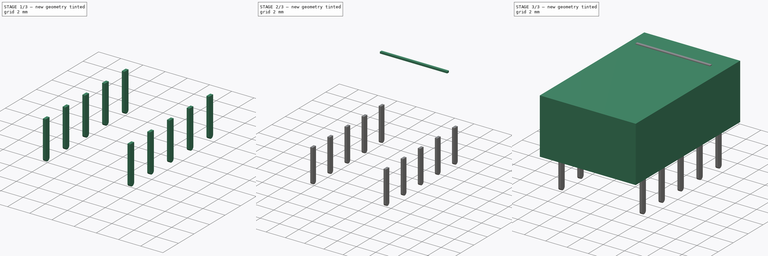
[diagram: build sequence overview — one tinted view per stage of 3, left to right]
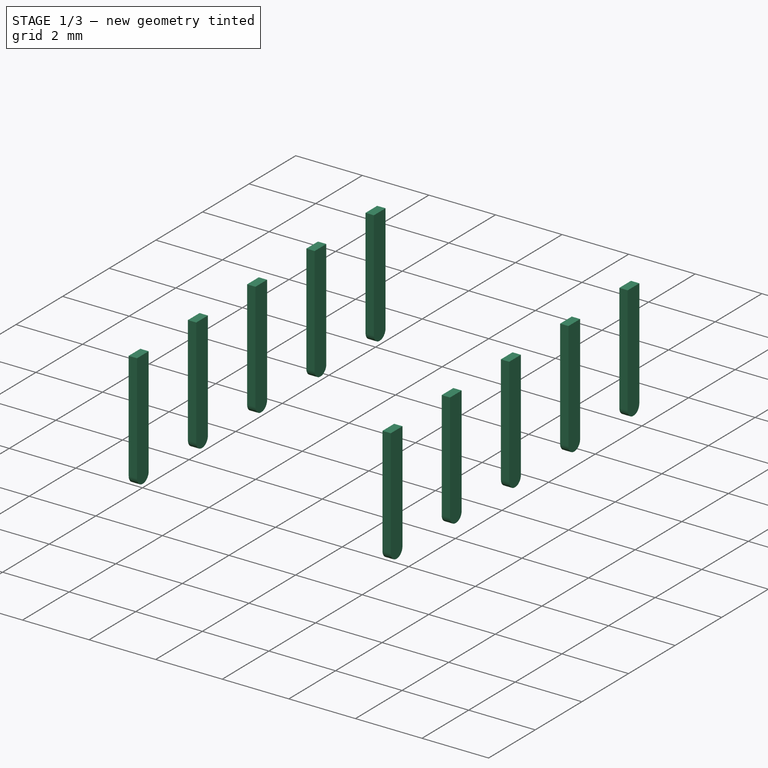
[diagram: stage 1 of 3 — iso view after this stage's code; geometry added in this stage tinted green]
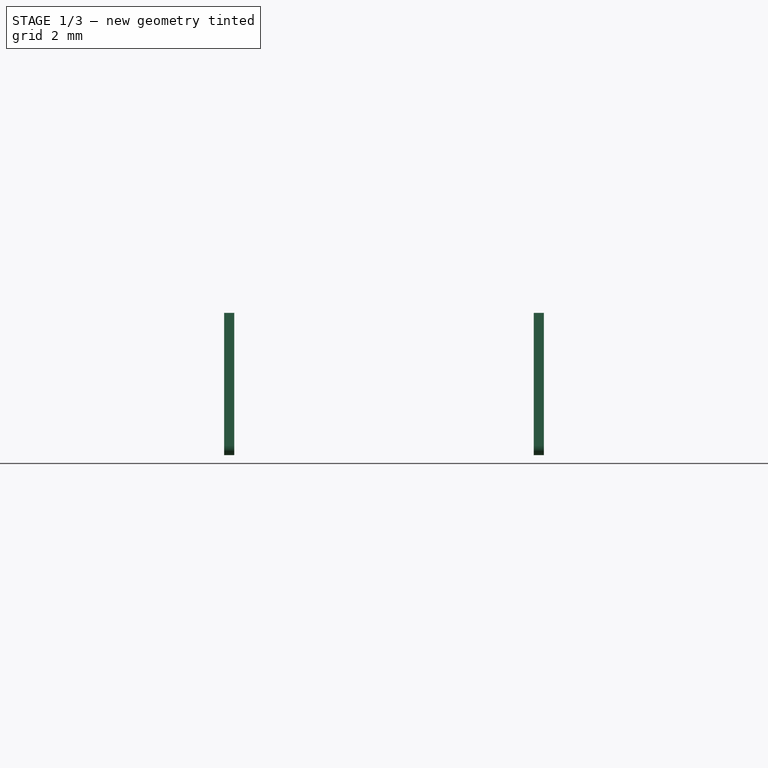
[diagram: stage 1 of 3 — front view after this stage's code; geometry added in this stage tinted green]
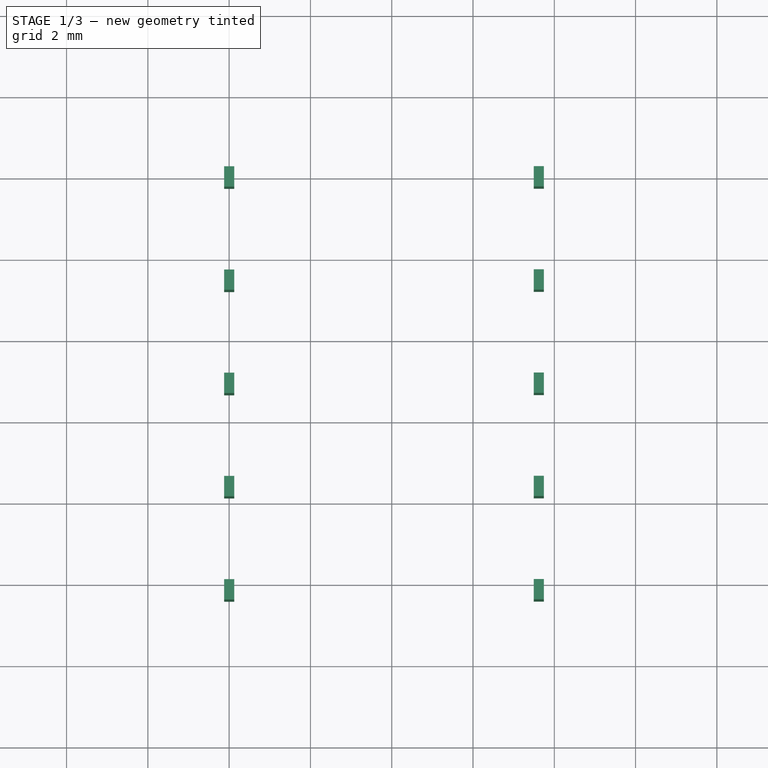
[diagram: stage 1 of 3 — top view after this stage's code; geometry added in this stage tinted green]
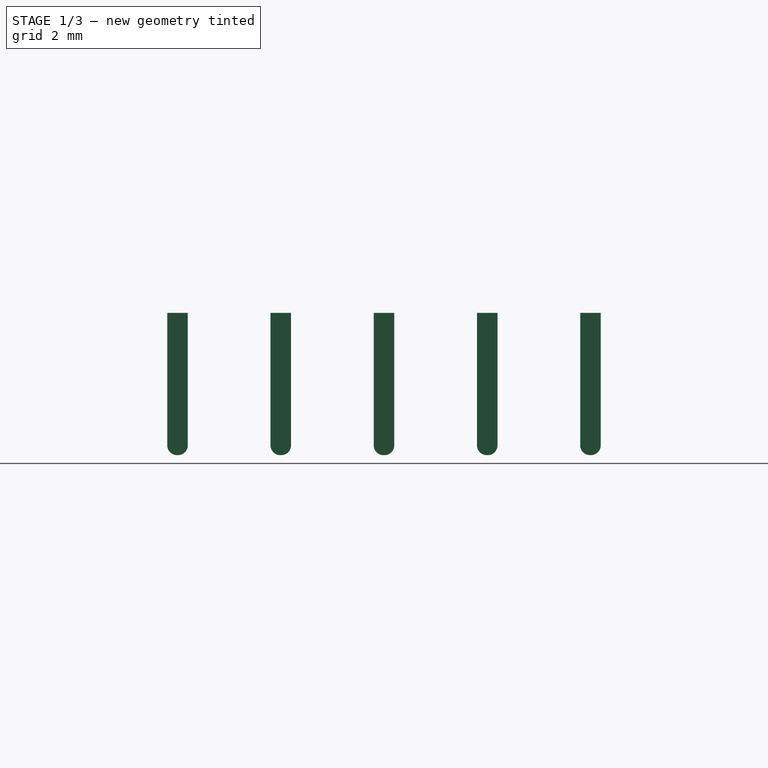
[diagram: stage 1 of 3 — right view after this stage's code; geometry added in this stage tinted green]
FCSTD DOCUMENT  (FreeCAD 0.16R6712 (Git))
Label: Relay_DPDT_Omron_G6H-2
License: All rights reserved
LicenseURL: http://en.wikipedia.org/wiki/All_rights_reserved
objects: Sketcher::SketchObject×3, PartDesign::Pad×3, Part::Feature×3, PartDesign::Fillet×1, App::DocumentObjectGroup×1, Part::MultiFuse×1
note: 14 computed .brp shape members not serialized (recipe doc carries the construction recipe); baked Part::Feature solids carry a one-line shape summary decoded from their .brp

FEATURE [Sketcher::SketchObject] Sketch002
  Placement = pos=(0,0,0.25) rot=(0,0,-1;1.5708rad)
  sketch-geometry (54):
    g0: LineSegment StartX=-0.25 StartY=0.125 StartZ=0 EndX=0.25 EndY=0.125 EndZ=0
    g1: LineSegment StartX=0.25 StartY=0.125 StartZ=0 EndX=0.25 EndY=-0.125 EndZ=0
    g2: LineSegment StartX=0.25 StartY=-0.125 StartZ=0 EndX=-0.25 EndY=-0.125 EndZ=0
    g3: LineSegment StartX=-0.25 StartY=-0.125 StartZ=0 EndX=-0.25 EndY=0.125 EndZ=0
    g4: GeomPoint [constr] X=10.16 Y=0 Z=0
    g5: GeomPoint [constr] X=2.54 Y=0 Z=0
    g6: GeomPoint [constr] X=5.08 Y=0 Z=0
    g7: GeomPoint [constr] X=7.62 Y=0 Z=0
    g8: LineSegment StartX=2.29 StartY=0.125 StartZ=0 EndX=2.79 EndY=0.125 EndZ=0
    g9: LineSegment StartX=2.79 StartY=0.125 StartZ=0 EndX=2.79 EndY=-0.125 EndZ=0
    g10: LineSegment StartX=2.79 StartY=-0.125 StartZ=0 EndX=2.29 EndY=-0.125 EndZ=0
    g11: LineSegment StartX=2.29 StartY=-0.125 StartZ=0 EndX=2.29 EndY=0.125 EndZ=0
    g12: LineSegment StartX=4.83 StartY=0.125 StartZ=0 EndX=5.33 EndY=0.125 EndZ=0
    g13: LineSegment StartX=5.33 StartY=0.125 StartZ=0 EndX=5.33 EndY=-0.125 EndZ=0
    g14: LineSegment StartX=5.33 StartY=-0.125 StartZ=0 EndX=4.83 EndY=-0.125 EndZ=0
    g15: LineSegment StartX=4.83 StartY=-0.125 StartZ=0 EndX=4.83 EndY=0.125 EndZ=0
    g16: GeomPoint [constr] X=7.0377 Y=-0.001997 Z=0
    g17: LineSegment StartX=7.37 StartY=0.125 StartZ=0 EndX=7.87 EndY=0.125 EndZ=0
    g18: LineSegment StartX=7.87 StartY=0.125 StartZ=0 EndX=7.87 EndY=-0.125 EndZ=0
    g19: LineSegment StartX=7.87 StartY=-0.125 StartZ=0 EndX=7.37 EndY=-0.125 EndZ=0
    g20: LineSegment StartX=7.37 StartY=-0.125 StartZ=0 EndX=7.37 EndY=0.125 EndZ=0
    g21: GeomPoint [constr] X=9.80367 Y=-0.005691 Z=0
    g22: GeomPoint [constr] X=9.22137 Y=-0.007688 Z=0
    g23: LineSegment StartX=9.91 StartY=0.125 StartZ=0 EndX=10.41 EndY=0.125 EndZ=0
    g24: LineSegment StartX=10.41 StartY=0.125 StartZ=0 EndX=10.41 EndY=-0.125 EndZ=0
    g25: LineSegment StartX=10.41 StartY=-0.125 StartZ=0 EndX=9.91 EndY=-0.125 EndZ=0
    g26: LineSegment StartX=9.91 StartY=-0.125 StartZ=0 EndX=9.91 EndY=0.125 EndZ=0
    g27: LineSegment StartX=-0.254201 StartY=7.745 StartZ=0 EndX=0.245799 EndY=7.745 EndZ=0
    g28: LineSegment StartX=0.245799 StartY=7.745 StartZ=0 EndX=0.245799 EndY=7.495 EndZ=0
    g29: LineSegment StartX=0.245799 StartY=7.495 StartZ=0 EndX=-0.254201 EndY=7.495 EndZ=0
    g30: LineSegment StartX=-0.254201 StartY=7.495 StartZ=0 EndX=-0.254201 EndY=7.745 EndZ=0
    g31: GeomPoint [constr] X=10.1558 Y=7.38315 Z=0
    g32: GeomPoint [constr] X=2.5358 Y=7.38315 Z=0
    g33: GeomPoint [constr] X=5.0758 Y=7.38315 Z=0
    g34: GeomPoint [constr] X=7.6158 Y=7.38315 Z=0
    g35: LineSegment StartX=2.2858 StartY=7.745 StartZ=0 EndX=2.7858 EndY=7.745 EndZ=0
    g36: LineSegment StartX=2.7858 StartY=7.745 StartZ=0 EndX=2.7858 EndY=7.495 EndZ=0
    g37: LineSegment StartX=2.7858 StartY=7.495 StartZ=0 EndX=2.2858 EndY=7.495 EndZ=0
    g38: LineSegment StartX=2.2858 StartY=7.495 StartZ=0 EndX=2.2858 EndY=7.745 EndZ=0
    g39: LineSegment StartX=4.8258 StartY=7.745 StartZ=0 EndX=5.3258 EndY=7.745 EndZ=0
    g40: LineSegment StartX=5.3258 StartY=7.745 StartZ=0 EndX=5.3258 EndY=7.495 EndZ=0
    g41: LineSegment StartX=5.3258 StartY=7.495 StartZ=0 EndX=4.8258 EndY=7.495 EndZ=0
    g42: LineSegment StartX=4.8258 StartY=7.495 StartZ=0 EndX=4.8258 EndY=7.745 EndZ=0
    g43: GeomPoint [constr] X=7.0335 Y=7.38115 Z=0
    g44: LineSegment StartX=7.3658 StartY=7.745 StartZ=0 EndX=7.8658 EndY=7.745 EndZ=0
    g45: LineSegment StartX=7.8658 StartY=7.745 StartZ=0 EndX=7.8658 EndY=7.495 EndZ=0
    g46: LineSegment StartX=7.8658 StartY=7.495 StartZ=0 EndX=7.3658 EndY=7.495 EndZ=0
    g47: LineSegment StartX=7.3658 StartY=7.495 StartZ=0 EndX=7.3658 EndY=7.745 EndZ=0
    g48: GeomPoint [constr] X=9.79947 Y=7.37746 Z=0
    g49: GeomPoint [constr] X=9.21717 Y=7.37546 Z=0
    g50: LineSegment StartX=9.9058 StartY=7.745 StartZ=0 EndX=10.4058 EndY=7.745 EndZ=0
    g51: LineSegment StartX=10.4058 StartY=7.745 StartZ=0 EndX=10.4058 EndY=7.495 EndZ=0
    g52: LineSegment StartX=10.4058 StartY=7.495 StartZ=0 EndX=9.9058 EndY=7.495 EndZ=0
    g53: LineSegment StartX=9.9058 StartY=7.495 StartZ=0 EndX=9.9058 EndY=7.745 EndZ=0
  constraints (130):
    c: Coincident(g0,g1)
    c: Coincident(g1,g2)
    c: Coincident(g2,g3)
    c: Coincident(g3,g0)
    c: Horizontal(g0)
    c: Horizontal(g2)
    c: Vertical(g1)
    c: Vertical(g3)
    c: DistanceX(g0,g0) = 0.5
    c: DistanceY(g1,g1) = 0.25
    c: DistanceY(g-1,g0) = 0.125
    c: DistanceX(g0,g-1) = 0.25
    c: PointOnObject(g4,g-1)
    c: PointOnObject(g5,g-1)
    c: PointOnObject(g6,g-1)
    c: PointOnObject(g7,g-1)
    c: DistanceX(g7,g4) = 2.54
    c: DistanceX(g6,g7) = 2.54
    c: DistanceX(g-1,g5) = 2.54
    c: DistanceX(g5,g6) = 2.54
    c: Coincident(g8,g9)
    c: Coincident(g9,g10)
    c: Coincident(g10,g11)
    c: Coincident(g11,g8)
    c: Horizontal(g8)
    c: Horizontal(g10)
    c: Vertical(g9)
    c: Vertical(g11)
    c: Equal(g0,g8) = 0.5
    c: Equal(g1,g9) = 0.25
    c: DistanceX(g2,g10) = 2.54
    c: Coincident(g12,g13)
    c: Coincident(g13,g14)
    c: Coincident(g14,g15)
    c: Coincident(g15,g12)
    c: Horizontal(g12)
    c: Horizontal(g14)
    c: Vertical(g13)
    c: Vertical(g15)
    c: Equal(g0,g12) = 0.5
    c: Equal(g1,g13) = 0.25
    c: Coincident(g17,g18)
    c: Coincident(g18,g19)
    c: Coincident(g19,g20)
    c: Coincident(g20,g17)
    c: Horizontal(g17)
    c: Horizontal(g19)
    c: Vertical(g18)
    c: Vertical(g20)
    c: Equal(g12,g17) = 0.5
    c: Equal(g13,g18) = 0.25
    c: DistanceX(g14,g19) = 2.54
    c: DistanceX(g10,g14) = 2.54
    c: Coincident(g23,g24)
    c: Coincident(g24,g25)
    c: Coincident(g25,g26)
    c: Coincident(g26,g23)
    c: Horizontal(g23)
    c: Horizontal(g25)
    c: Vertical(g24)
    c: Vertical(g26)
    c: DistanceX(g19,g25) = 2.54
    c: DistanceX(g25,g25) = 0.5
    c: DistanceY(g24,g24) = 0.25
    c: DistanceY(g23,g17) = 0
    c: DistanceY(g12,g17) = 0
    c: DistanceY(g12,g8) = 0
    c: DistanceY(g8,g0) = 0
    c: Coincident(g27,g28)
    c: Coincident(g28,g29)
    c: Coincident(g29,g30)
    c: Coincident(g30,g27)
    c: Horizontal(g27)
    c: Horizontal(g29)
    c: Vertical(g28)
    c: Vertical(g30)
    c: Equal(g0,g27) = 0.5
    c: Equal(g1,g28) = 0.25
    c: DistanceX(g34,g31) = 2.54
    c: DistanceX(g33,g34) = 2.54
    c: DistanceX(g32,g33) = 2.54
    c: Coincident(g35,g36)
    c: Coincident(g36,g37)
    c: Coincident(g37,g38)
    c: Coincident(g38,g35)
    c: Horizontal(g35)
    c: Horizontal(g37)
    c: Vertical(g36)
    c: Vertical(g38)
    c: Equal(g27,g35) = 0.5
    c: Equal(g28,g36) = 0.25
    c: DistanceX(g29,g37) = 2.54
    c: Coincident(g39,g40)
    c: Coincident(g40,g41)
    c: Coincident(g41,g42)
    c: Coincident(g42,g39)
    c: Horizontal(g39)
    c: Horizontal(g41)
    c: Vertical(g40)
    c: Vertical(g42)
    c: Equal(g27,g39) = 0.5
    c: Equal(g28,g40) = 0.25
    c: Coincident(g44,g45)
    c: Coincident(g45,g46)
    c: Coincident(g46,g47)
    c: Coincident(g47,g44)
    c: Horizontal(g44)
    c: Horizontal(g46)
    c: Vertical(g45)
    c: Vertical(g47)
    c: Equal(g39,g44) = 0.5
    c: Equal(g40,g45) = 0.25
    c: DistanceX(g41,g46) = 2.54
    c: DistanceX(g37,g41) = 2.54
    c: Coincident(g50,g51)
    c: Coincident(g51,g52)
    c: Coincident(g52,g53)
    c: Coincident(g53,g50)
    c: Horizontal(g50)
    c: Horizontal(g52)
    c: Vertical(g51)
    c: Vertical(g53)
    c: DistanceX(g46,g52) = 2.54
    c: Equal(g25,g52) = 0.5
    c: Equal(g24,g51) = 0.25
    c: DistanceY(g50,g44) = 0
    c: DistanceY(g39,g44) = 0
    c: DistanceY(g39,g35) = 0
    c: DistanceY(g35,g27) = 0
    c: DistanceY(g2,g29) = 7.62
FEATURE [PartDesign::Pad] Pad002
  Length = 3.5
  Length2 = 100
  Placement = pos=(0,0,0.25) rot=(0,0,-1;1.5708rad)
  Reversed = true
  Sketch = -> Sketch002
  Type = 0
FEATURE [PartDesign::Fillet] Fillet
  Base = -> Pad002 [Edge67,Edge72,Edge79,Edge84,Edge91,Edge96,Edge103,Edge19,Edge24,Edge7,Edge12,Edge31,Edge36,Edge43,Edge48,Edge55,Edge60,Edge120,Edge115,Edge108]
  Placement = pos=(0,0,0.25) rot=(0,0,-1;1.5708rad)
  Radius = 0.24
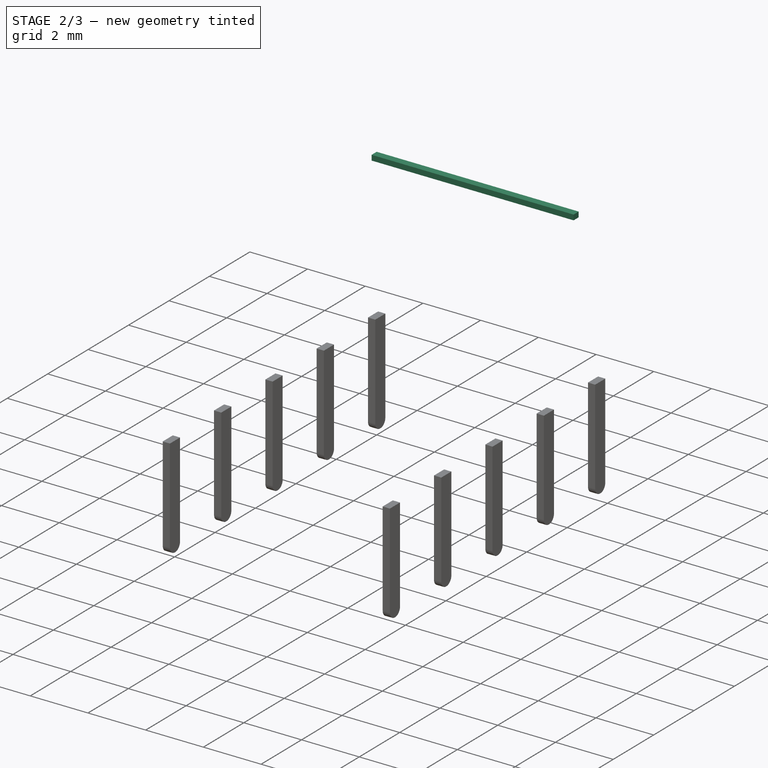
[diagram: stage 2 of 3 — iso view after this stage's code; geometry added in this stage tinted green]
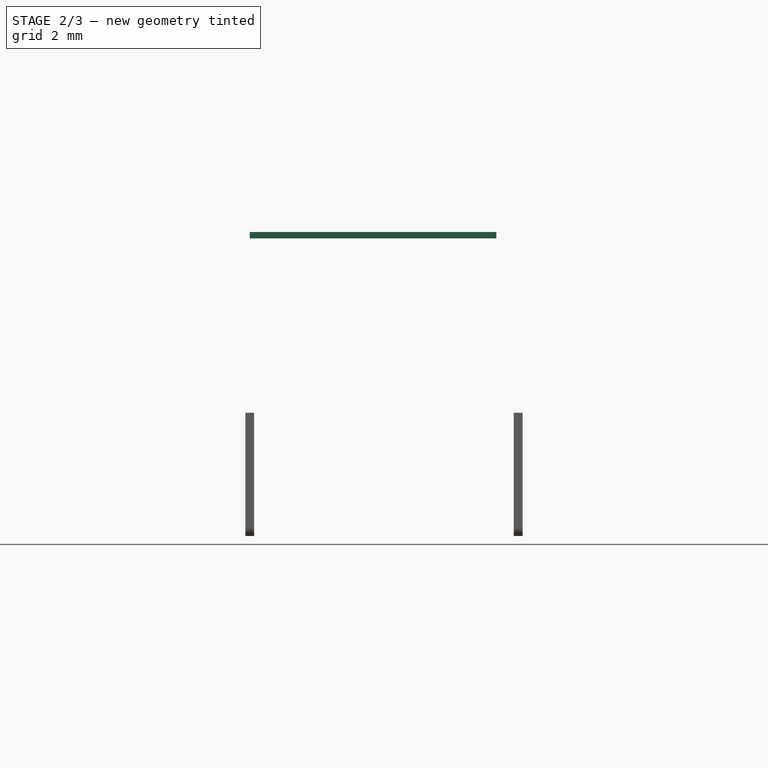
[diagram: stage 2 of 3 — front view after this stage's code; geometry added in this stage tinted green]
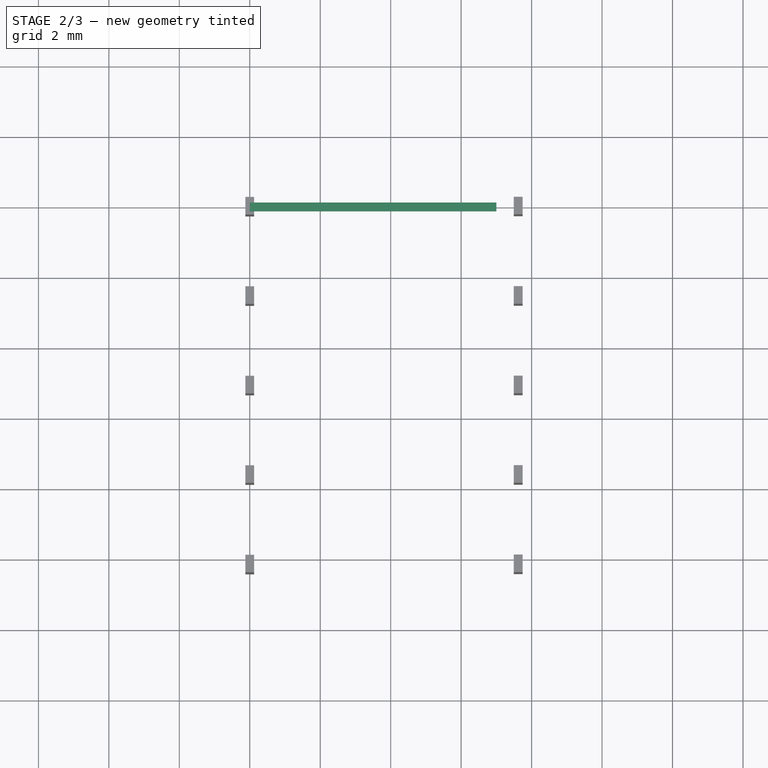
[diagram: stage 2 of 3 — top view after this stage's code; geometry added in this stage tinted green]
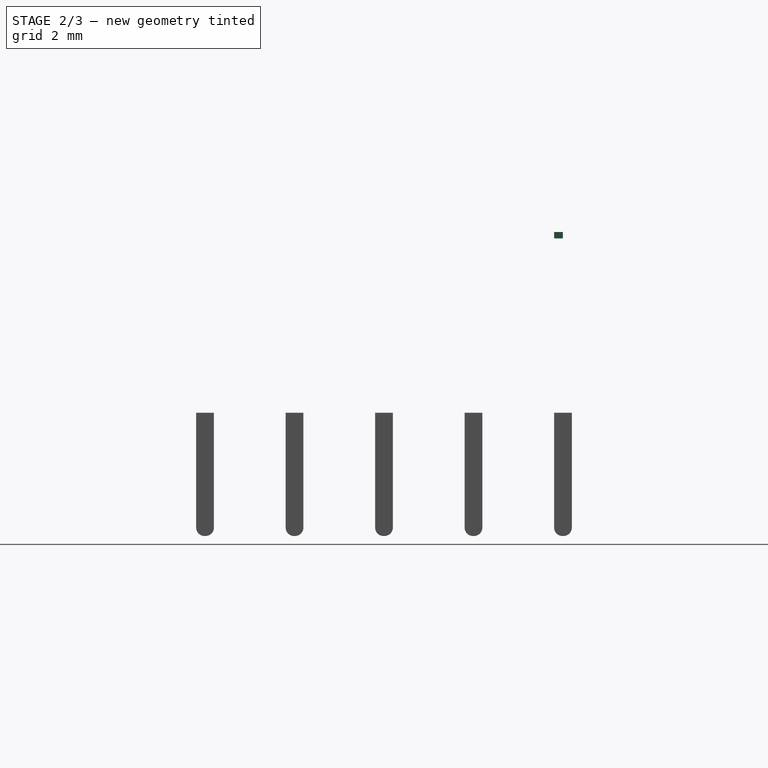
[diagram: stage 2 of 3 — right view after this stage's code; geometry added in this stage tinted green]
FEATURE [Sketcher::SketchObject] Sketch001
  Placement = pos=(0,0,5.2) rot=(0,0,-1;1.5708rad)
  sketch-geometry (4):
    g0: LineSegment StartX=0 StartY=0 StartZ=0 EndX=0.25 EndY=0 EndZ=0
    g1: LineSegment StartX=0.25 StartY=0 StartZ=0 EndX=0.25 EndY=7 EndZ=0
    g2: LineSegment StartX=0.25 StartY=7 StartZ=0 EndX=0 EndY=7 EndZ=0
    g3: LineSegment StartX=0 StartY=7 StartZ=0 EndX=0 EndY=0 EndZ=0
  constraints (11):
    c: Coincident(g0,g1)
    c: Coincident(g1,g2)
    c: Coincident(g2,g3)
    c: Coincident(g3,g0)
    c: Horizontal(g0)
    c: Horizontal(g2)
    c: Vertical(g1)
    c: Vertical(g3)
    c: Coincident(g0,g-1)
    c: DistanceY(g1,g1) = 7
    c: DistanceX(g2,g2) = 0.25
FEATURE [PartDesign::Pad] Pad001
  Length = 0.18
  Length2 = 100
  Placement = pos=(0,0,5.2) rot=(0,0,-1;1.5708rad)
  Sketch = -> Sketch001
  Type = 0
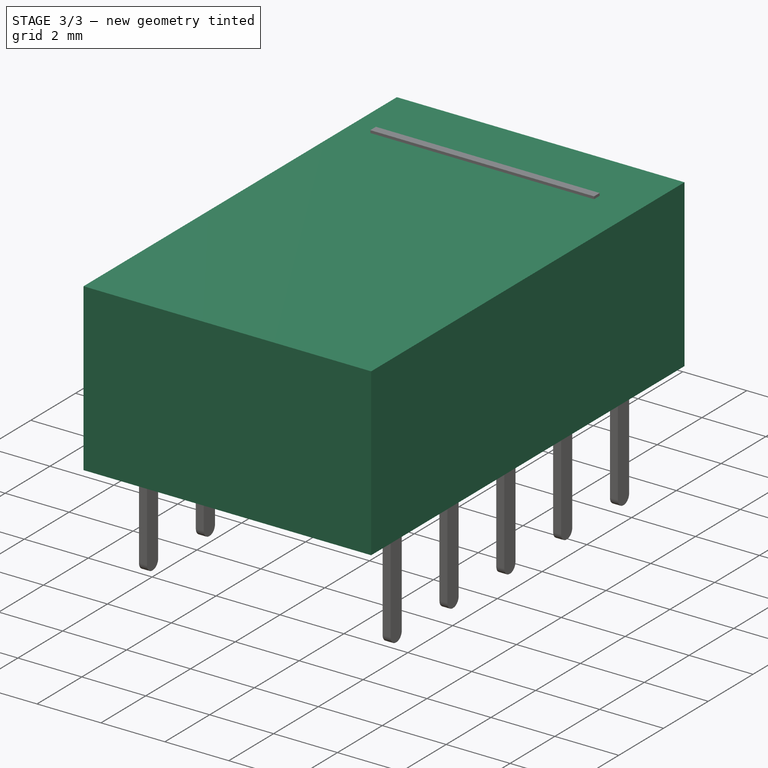
[diagram: stage 3 of 3 — iso view after this stage's code; geometry added in this stage tinted green]
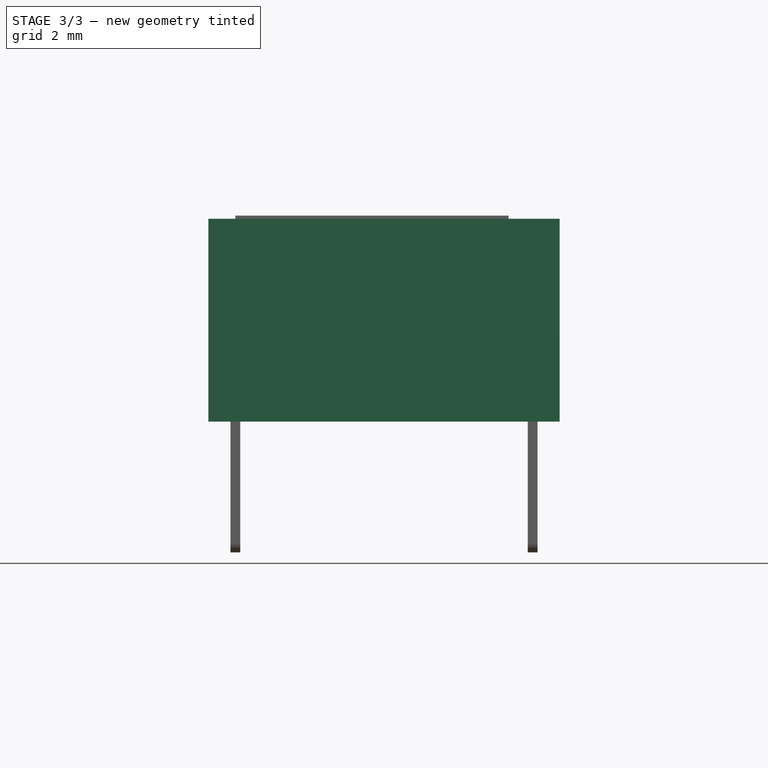
[diagram: stage 3 of 3 — front view after this stage's code; geometry added in this stage tinted green]
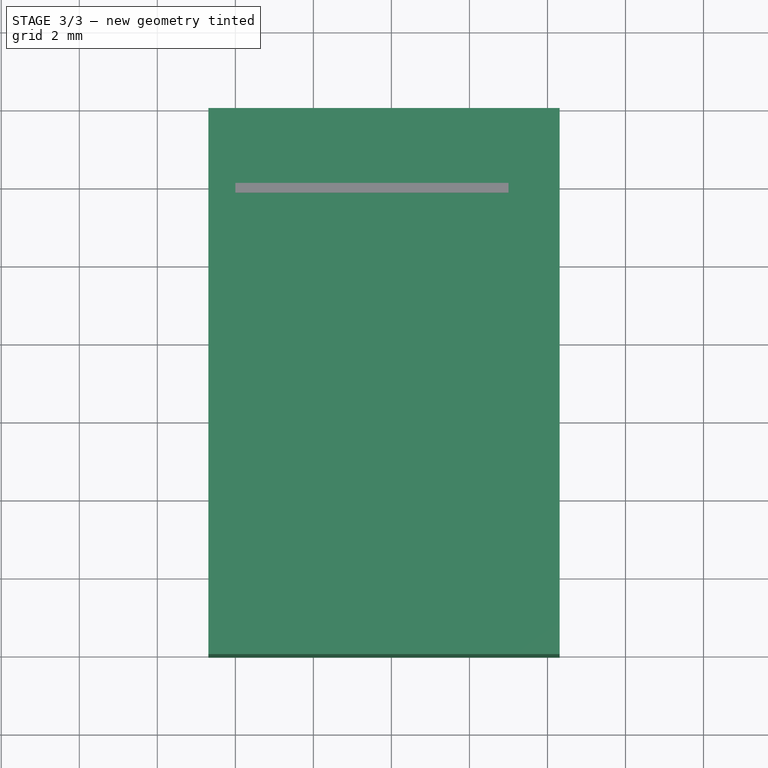
[diagram: stage 3 of 3 — top view after this stage's code; geometry added in this stage tinted green]
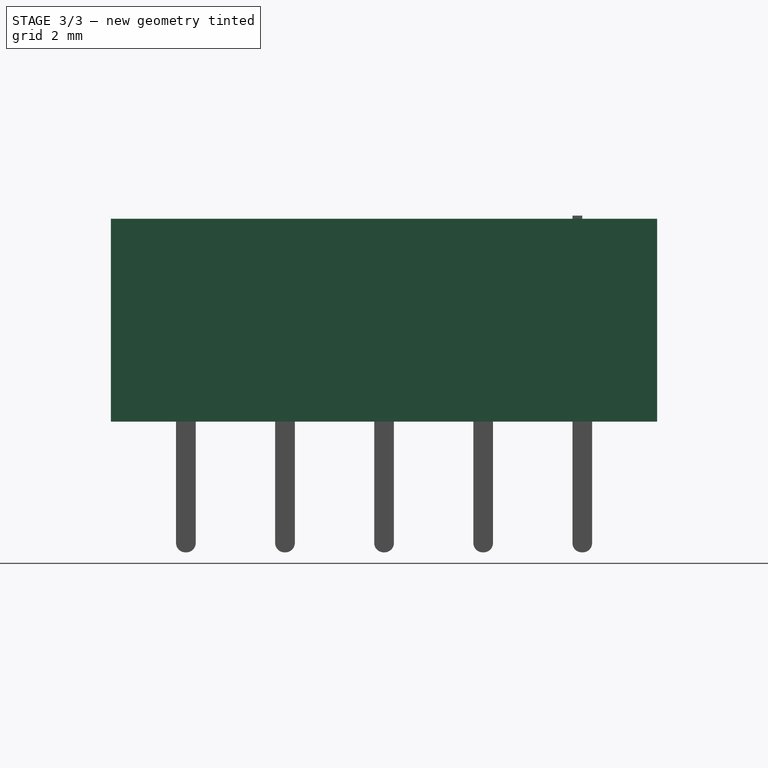
[diagram: stage 3 of 3 — right view after this stage's code; geometry added in this stage tinted green]
FEATURE [Sketcher::SketchObject] Sketch
  Placement = pos=(0,0,0.1) rot=(0,0,-1;1.5708rad)
  expr: Constraints[10] = (14 - 4 * 2.54) / 2
  expr: Constraints[11] = (9 - 7.62) / 2
  sketch-geometry (4):
    g0: LineSegment StartX=-1.92 StartY=-0.69 StartZ=0 EndX=12.08 EndY=-0.69 EndZ=0
    g1: LineSegment StartX=12.08 StartY=-0.69 StartZ=0 EndX=12.08 EndY=8.31 EndZ=0
    g2: LineSegment StartX=12.08 StartY=8.31 StartZ=0 EndX=-1.92 EndY=8.31 EndZ=0
    g3: LineSegment StartX=-1.92 StartY=8.31 StartZ=0 EndX=-1.92 EndY=-0.69 EndZ=0
  constraints (12):
    c: Coincident(g0,g1)
    c: Coincident(g1,g2)
    c: Coincident(g2,g3)
    c: Coincident(g3,g0)
    c: Horizontal(g0)
    c: Horizontal(g2)
    c: Vertical(g1)
    c: Vertical(g3)
    c: DistanceX(g2,g2) = 14
    c: DistanceY(g1,g1) = 9
    c: DistanceX(g0,g-1) = 1.92
    c: DistanceY(g0,g-1) = 0.69
FEATURE [PartDesign::Pad] Pad
  Length = 5.2
  Length2 = 100
  Placement = pos=(0,0,0.1) rot=(0,0,-1;1.5708rad)
  Sketch = -> Sketch
  Type = 0
FEATURE [Part::Feature] FusionAxisZ1  label="Z"
  shape: bbox 0.8 x 0.8 x 14 mm, 8 faces (baked)
FEATURE [Part::Feature] FusionAxisY1  label="Y"
  Placement = pos=(0,0,0.05) rot=(-1,0,0;1.5708rad)
  shape: bbox 0.8 x 14 x 0.8 mm, 8 faces (baked)
FEATURE [Part::Feature] FusionAxisX1  label="X"
  Placement = pos=(0,-0.05,0) rot=(0,1,0;1.5708rad)
  shape: bbox 14 x 0.8 x 0.8 mm, 8 faces (baked)
FEATURE [App::DocumentObjectGroup] axis
  Group = -> [FusionAxisZ1,FusionAxisY1,FusionAxisX1]
FEATURE [Part::MultiFuse] Pad001_mp_cp  label="Relay_DPDT_Omron_G6H-2"
  Shapes = -> [Pad001,Fillet,Pad]
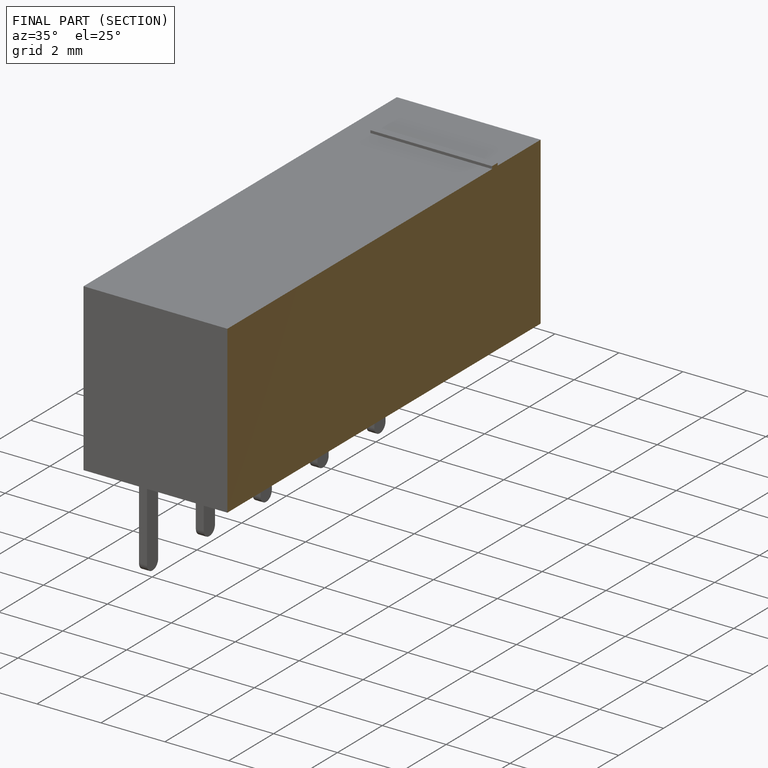
[diagram: finished part — half-section view (interior)]
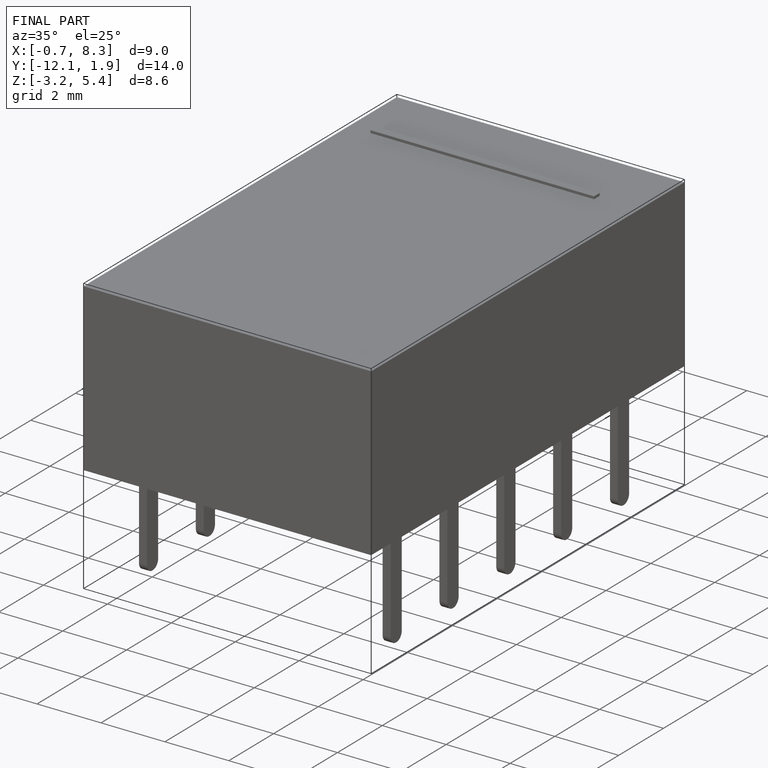
[diagram: finished part — iso view with bounding-box wireframe]
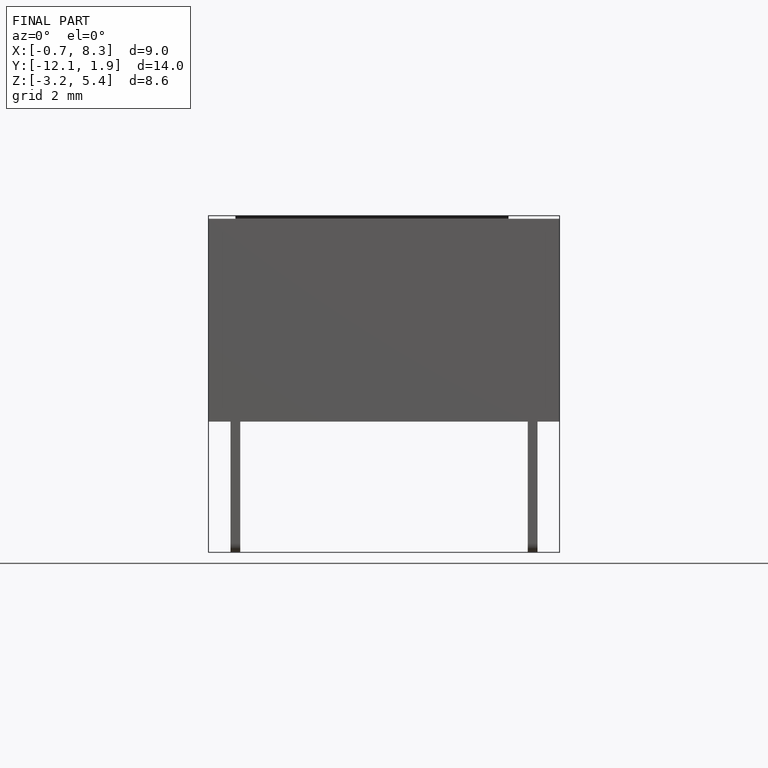
[diagram: finished part — front view with bounding-box wireframe]
